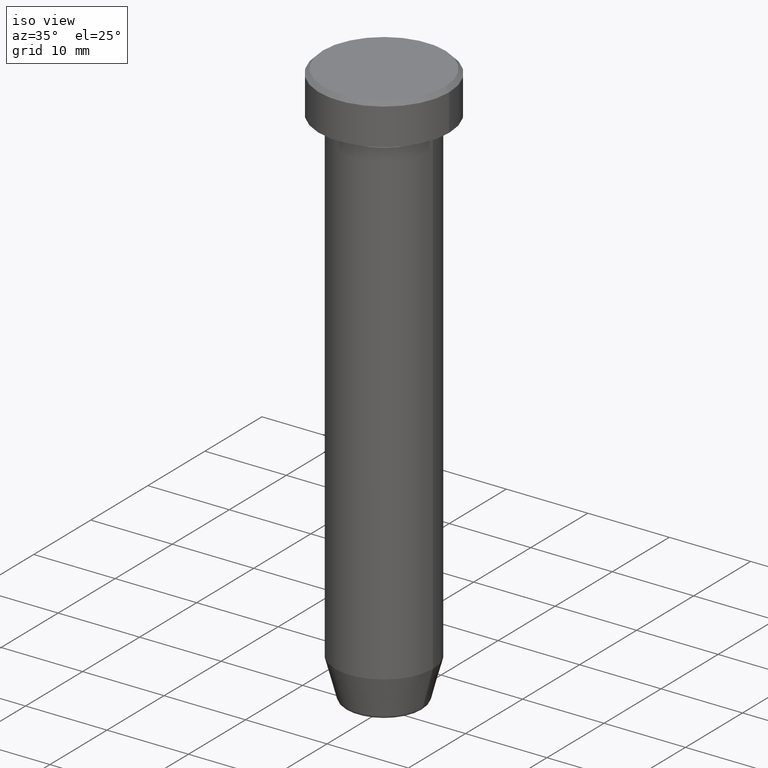
[diagram: clean part render]
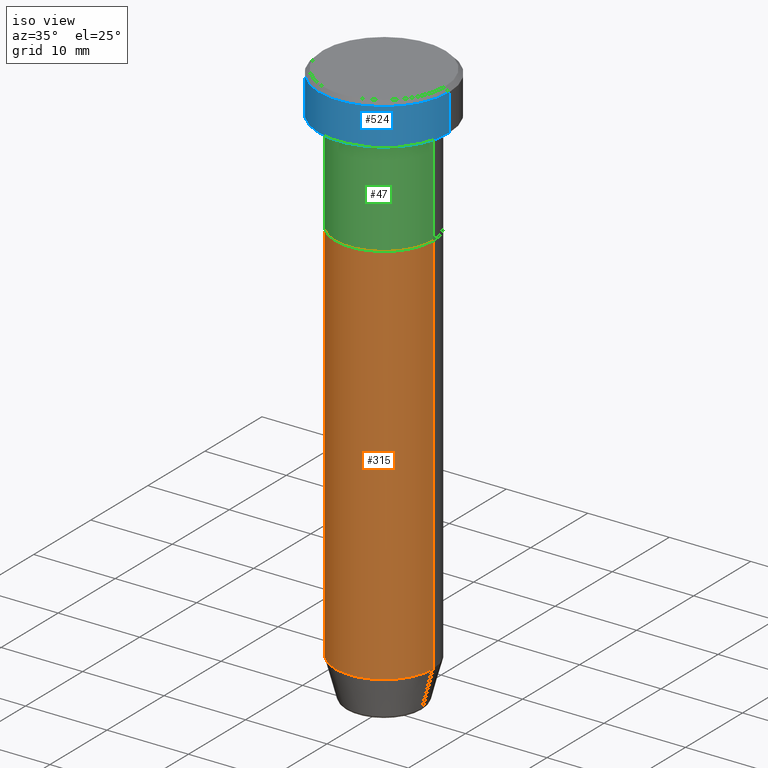
[diagram: same view with three faces highlighted in distinct colors, each labeled with its STEP entity id]
A machine part, iso view with three faces highlighted in distinct colors.
Their STEP definitions:

[orange] entity #315 — the highlighted cylindrical surface (partial cylindrical patch) has radius 6 mm, axis along (-0, -0, 1).
#1 = CARTESIAN_POINT ( 'NONE',  ( 0.000000000000000000, 0.000000000000000000, 0.000000000000000000 ) ) ;
#21 = DIRECTION ( 'NONE',  ( -0.000000000000000000, -0.000000000000000000, 1.000000000000000000 ) ) ;
#34 = ORIENTED_EDGE ( 'NONE', *, *, #156, .F. ) ;
#39 = AXIS2_PLACEMENT_3D ( 'NONE', #487, #21, #247 ) ;
#57 = CARTESIAN_POINT ( 'NONE',  ( 6.000000000000000000, 0.000000000000000000, -17.50000000000000000 ) ) ;
#69 = CARTESIAN_POINT ( 'NONE',  ( -6.000000000000000000, 7.347880794884119736E-16, 0.000000000000000000 ) ) ;
#80 = CIRCLE ( 'NONE', #89, 6.000000000000000000 ) ;
#89 = AXIS2_PLACEMENT_3D ( 'NONE', #392, #155, #350 ) ;
#112 = VECTOR ( 'NONE', #249, 1000.000000000000000 ) ;
#117 = AXIS2_PLACEMENT_3D ( 'NONE', #1, #282, #380 ) ;
#122 = LINE ( 'NONE', #125, #469 ) ;
#125 = CARTESIAN_POINT ( 'NONE',  ( 6.000000000000000000, 0.000000000000000000, 0.000000000000000000 ) ) ;
#145 = CYLINDRICAL_SURFACE ( 'NONE', #117, 6.000000000000000000 ) ;
#155 = DIRECTION ( 'NONE',  ( -0.000000000000000000, -0.000000000000000000, 1.000000000000000000 ) ) ;
#156 = EDGE_CURVE ( 'NONE', #266, #513, #80, .T. ) ;
#193 = EDGE_LOOP ( 'NONE', ( #599, #283, #531, #34 ) ) ;
#217 = DIRECTION ( 'NONE',  ( -0.000000000000000000, -0.000000000000000000, 1.000000000000000000 ) ) ;
#221 = CIRCLE ( 'NONE', #39, 6.000000000000000000 ) ;
#227 = EDGE_CURVE ( 'NONE', #257, #513, #122, .T. ) ;
#247 = DIRECTION ( 'NONE',  ( 1.000000000000000000, 0.000000000000000000, 0.000000000000000000 ) ) ;
#249 = DIRECTION ( 'NONE',  ( -0.000000000000000000, -0.000000000000000000, 1.000000000000000000 ) ) ;
#257 = VERTEX_POINT ( 'NONE', #509 ) ;
#258 = CARTESIAN_POINT ( 'NONE',  ( -6.000000000000000000, 7.347880794884119736E-16, -17.50000000000000000 ) ) ;
#266 = VERTEX_POINT ( 'NONE', #258 ) ;
#271 = FACE_OUTER_BOUND ( 'NONE', #193, .T. ) ;
#282 = DIRECTION ( 'NONE',  ( -0.000000000000000000, -0.000000000000000000, 1.000000000000000000 ) ) ;
#283 = ORIENTED_EDGE ( 'NONE', *, *, #556, .T. ) ;
#315 = ADVANCED_FACE ( 'NONE', ( #271 ), #145, .T. ) ;
#350 = DIRECTION ( 'NONE',  ( 1.000000000000000000, 0.000000000000000000, 0.000000000000000000 ) ) ;
#380 = DIRECTION ( 'NONE',  ( 1.000000000000000000, 0.000000000000000000, 0.000000000000000000 ) ) ;
#389 = CARTESIAN_POINT ( 'NONE',  ( -6.000000000000000000, 7.347880794884119736E-16, -65.00000000000000000 ) ) ;
#392 = CARTESIAN_POINT ( 'NONE',  ( 0.000000000000000000, 0.000000000000000000, -17.50000000000000000 ) ) ;
#393 = LINE ( 'NONE', #69, #112 ) ;
#469 = VECTOR ( 'NONE', #217, 1000.000000000000000 ) ;
#487 = CARTESIAN_POINT ( 'NONE',  ( 0.000000000000000000, 0.000000000000000000, -65.00000000000000000 ) ) ;
#509 = CARTESIAN_POINT ( 'NONE',  ( 6.000000000000000000, 0.000000000000000000, -65.00000000000000000 ) ) ;
#513 = VERTEX_POINT ( 'NONE', #57 ) ;
#521 = VERTEX_POINT ( 'NONE', #389 ) ;
#531 = ORIENTED_EDGE ( 'NONE', *, *, #227, .T. ) ;
#556 = EDGE_CURVE ( 'NONE', #521, #257, #221, .T. ) ;
#588 = EDGE_CURVE ( 'NONE', #521, #266, #393, .T. ) ;
#599 = ORIENTED_EDGE ( 'NONE', *, *, #588, .F. ) ;

[blue] entity #524 — the highlighted cylindrical surface (partial cylindrical patch) has radius 8 mm, axis along (-0, -0, 1).
#6 = EDGE_CURVE ( 'NONE', #58, #16, #518, .T. ) ;
#16 = VERTEX_POINT ( 'NONE', #255 ) ;
#22 = EDGE_CURVE ( 'NONE', #16, #235, #120, .T. ) ;
#26 = CARTESIAN_POINT ( 'NONE',  ( 8.000000000000000000, 0.000000000000000000, -5.000000000000000000 ) ) ;
#44 = ORIENTED_EDGE ( 'NONE', *, *, #370, .F. ) ;
#58 = VERTEX_POINT ( 'NONE', #26 ) ;
#62 = FACE_OUTER_BOUND ( 'NONE', #468, .T. ) ;
#70 = CARTESIAN_POINT ( 'NONE',  ( 0.000000000000000000, 0.000000000000000000, -5.000000000000000000 ) ) ;
#71 = EDGE_CURVE ( 'NONE', #241, #58, #379, .T. ) ;
#109 = DIRECTION ( 'NONE',  ( 0.000000000000000000, 0.000000000000000000, -1.000000000000000000 ) ) ;
#120 = CIRCLE ( 'NONE', #568, 8.000000000000000000 ) ;
#143 = DIRECTION ( 'NONE',  ( -0.000000000000000000, -0.000000000000000000, 1.000000000000000000 ) ) ;
#157 = CYLINDRICAL_SURFACE ( 'NONE', #492, 8.000000000000000000 ) ;
#173 = VECTOR ( 'NONE', #413, 1000.000000000000000 ) ;
#203 = DIRECTION ( 'NONE',  ( -0.000000000000000000, -0.000000000000000000, 1.000000000000000000 ) ) ;
#206 = DIRECTION ( 'NONE',  ( 1.000000000000000000, 0.000000000000000000, 0.000000000000000000 ) ) ;
#235 = VERTEX_POINT ( 'NONE', #443 ) ;
#241 = VERTEX_POINT ( 'NONE', #307 ) ;
#255 = CARTESIAN_POINT ( 'NONE',  ( 8.000000000000000000, 0.000000000000000000, -0.4999999999999935052 ) ) ;
#294 = DIRECTION ( 'NONE',  ( -0.000000000000000000, -0.000000000000000000, 1.000000000000000000 ) ) ;
#295 = DIRECTION ( 'NONE',  ( 1.000000000000000000, 0.000000000000000000, 0.000000000000000000 ) ) ;
#307 = CARTESIAN_POINT ( 'NONE',  ( -8.000000000000000000, 9.797174393178825657E-16, -5.000000000000000000 ) ) ;
#336 = ORIENTED_EDGE ( 'NONE', *, *, #6, .T. ) ;
#370 = EDGE_CURVE ( 'NONE', #241, #235, #473, .T. ) ;
#379 = CIRCLE ( 'NONE', #477, 8.000000000000000000 ) ;
#383 = CARTESIAN_POINT ( 'NONE',  ( -8.000000000000000000, 9.797174393178825657E-16, 0.000000000000000000 ) ) ;
#394 = CARTESIAN_POINT ( 'NONE',  ( 0.000000000000000000, 0.000000000000000000, -0.4999999999999935052 ) ) ;
#400 = DIRECTION ( 'NONE',  ( 1.000000000000000000, 0.000000000000000000, 0.000000000000000000 ) ) ;
#406 = VECTOR ( 'NONE', #143, 1000.000000000000000 ) ;
#413 = DIRECTION ( 'NONE',  ( -0.000000000000000000, -0.000000000000000000, 1.000000000000000000 ) ) ;
#414 = ORIENTED_EDGE ( 'NONE', *, *, #22, .T. ) ;
#428 = CARTESIAN_POINT ( 'NONE',  ( 0.000000000000000000, 0.000000000000000000, 0.000000000000000000 ) ) ;
#443 = CARTESIAN_POINT ( 'NONE',  ( -8.000000000000000000, 9.797174393178825657E-16, -0.4999999999999935052 ) ) ;
#468 = EDGE_LOOP ( 'NONE', ( #44, #555, #336, #414 ) ) ;
#473 = LINE ( 'NONE', #383, #173 ) ;
#477 = AXIS2_PLACEMENT_3D ( 'NONE', #70, #294, #206 ) ;
#492 = AXIS2_PLACEMENT_3D ( 'NONE', #428, #203, #295 ) ;
#518 = LINE ( 'NONE', #572, #406 ) ;
#524 = ADVANCED_FACE ( 'NONE', ( #62 ), #157, .T. ) ;
#555 = ORIENTED_EDGE ( 'NONE', *, *, #71, .T. ) ;
#568 = AXIS2_PLACEMENT_3D ( 'NONE', #394, #109, #400 ) ;
#572 = CARTESIAN_POINT ( 'NONE',  ( 8.000000000000000000, 0.000000000000000000, 0.000000000000000000 ) ) ;

[green] entity #47 — the highlighted cylindrical surface (partial cylindrical patch) has radius 6 mm, axis along (-0, -0, 1).
#9 = DIRECTION ( 'NONE',  ( -0.000000000000000000, -0.000000000000000000, 1.000000000000000000 ) ) ;
#28 = DIRECTION ( 'NONE',  ( -0.000000000000000000, -0.000000000000000000, 1.000000000000000000 ) ) ;
#29 = CYLINDRICAL_SURFACE ( 'NONE', #532, 6.000000000000000000 ) ;
#31 = VERTEX_POINT ( 'NONE', #584 ) ;
#47 = ADVANCED_FACE ( 'NONE', ( #494 ), #29, .T. ) ;
#50 = CARTESIAN_POINT ( 'NONE',  ( -6.000000000000000000, 7.347880794884119736E-16, -6.000000000000000000 ) ) ;
#61 = CIRCLE ( 'NONE', #312, 6.000000000000000000 ) ;
#78 = DIRECTION ( 'NONE',  ( -0.000000000000000000, -0.000000000000000000, 1.000000000000000000 ) ) ;
#79 = VERTEX_POINT ( 'NONE', #209 ) ;
#91 = LINE ( 'NONE', #425, #527 ) ;
#123 = EDGE_CURVE ( 'NONE', #317, #596, #146, .T. ) ;
#146 = CIRCLE ( 'NONE', #213, 6.000000000000000000 ) ;
#151 = CARTESIAN_POINT ( 'NONE',  ( 6.000000000000000000, 0.000000000000000000, -6.000000000000000000 ) ) ;
#175 = CARTESIAN_POINT ( 'NONE',  ( 0.000000000000000000, 0.000000000000000000, -17.50000000000000000 ) ) ;
#179 = EDGE_LOOP ( 'NONE', ( #260, #324, #558, #309 ) ) ;
#204 = CARTESIAN_POINT ( 'NONE',  ( 0.000000000000000000, 0.000000000000000000, -6.000000000000000000 ) ) ;
#209 = CARTESIAN_POINT ( 'NONE',  ( 6.000000000000000000, 0.000000000000000000, -17.50000000000000000 ) ) ;
#213 = AXIS2_PLACEMENT_3D ( 'NONE', #204, #343, #580 ) ;
#251 = EDGE_CURVE ( 'NONE', #31, #317, #407, .T. ) ;
#260 = ORIENTED_EDGE ( 'NONE', *, *, #251, .F. ) ;
#262 = DIRECTION ( 'NONE',  ( -0.000000000000000000, -0.000000000000000000, 1.000000000000000000 ) ) ;
#274 = EDGE_CURVE ( 'NONE', #31, #79, #61, .T. ) ;
#289 = CARTESIAN_POINT ( 'NONE',  ( 0.000000000000000000, 0.000000000000000000, 0.000000000000000000 ) ) ;
#304 = DIRECTION ( 'NONE',  ( 1.000000000000000000, 0.000000000000000000, 0.000000000000000000 ) ) ;
#309 = ORIENTED_EDGE ( 'NONE', *, *, #123, .F. ) ;
#312 = AXIS2_PLACEMENT_3D ( 'NONE', #175, #262, #304 ) ;
#317 = VERTEX_POINT ( 'NONE', #50 ) ;
#324 = ORIENTED_EDGE ( 'NONE', *, *, #274, .T. ) ;
#340 = DIRECTION ( 'NONE',  ( 1.000000000000000000, 0.000000000000000000, 0.000000000000000000 ) ) ;
#343 = DIRECTION ( 'NONE',  ( -0.000000000000000000, -0.000000000000000000, 1.000000000000000000 ) ) ;
#353 = CARTESIAN_POINT ( 'NONE',  ( -6.000000000000000000, 7.347880794884119736E-16, 0.000000000000000000 ) ) ;
#385 = EDGE_CURVE ( 'NONE', #79, #596, #91, .T. ) ;
#407 = LINE ( 'NONE', #353, #526 ) ;
#425 = CARTESIAN_POINT ( 'NONE',  ( 6.000000000000000000, 0.000000000000000000, 0.000000000000000000 ) ) ;
#494 = FACE_OUTER_BOUND ( 'NONE', #179, .T. ) ;
#526 = VECTOR ( 'NONE', #78, 1000.000000000000000 ) ;
#527 = VECTOR ( 'NONE', #9, 1000.000000000000000 ) ;
#532 = AXIS2_PLACEMENT_3D ( 'NONE', #289, #28, #340 ) ;
#558 = ORIENTED_EDGE ( 'NONE', *, *, #385, .T. ) ;
#580 = DIRECTION ( 'NONE',  ( 1.000000000000000000, 0.000000000000000000, 0.000000000000000000 ) ) ;
#584 = CARTESIAN_POINT ( 'NONE',  ( -6.000000000000000000, 7.347880794884119736E-16, -17.50000000000000000 ) ) ;
#596 = VERTEX_POINT ( 'NONE', #151 ) ;